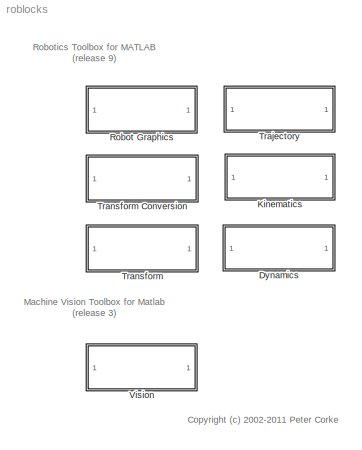
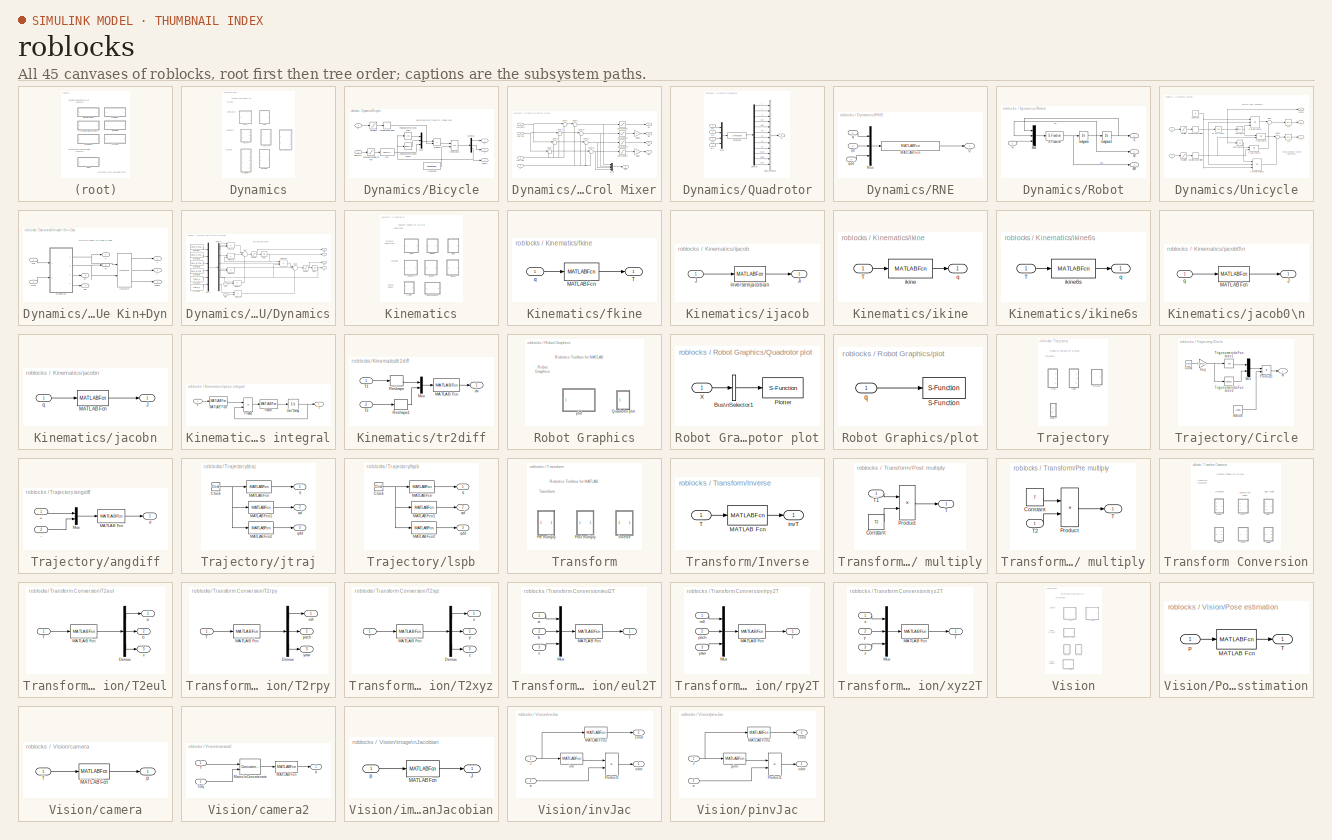
[diagram: thumbnail index - all 45 canvases of the model, root first then tree order]
MODEL roblocks
KIND library
BLOCK [SubSystem] Dynamics
  FunctionWithSeparateData = off
  MaskHideContents = off
  MinAlgLoopOccurrences = off
  Opaque = off
  Ports = []
  PropExecContextOutsideSubsystem = off
  RTWSystemCode = Auto
  RequestExecContextInheritance = off
  SID = 5
BLOCK [SubSystem] Dynamics/Bicycle
  FunctionWithSeparateData = off
  MaskHideContents = off
  MinAlgLoopOccurrences = off
  Opaque = off
  Ports = [2, 3]
  PropExecContextOutsideSubsystem = off
  RTWSystemCode = Auto
  RequestExecContextInheritance = off
  SID = 51
BLOCK [Constant] Dynamics/Bicycle/Constant
  SID = 51:222
  Value = handbrake
BLOCK [Demux] Dynamics/Bicycle/Demux
  DisplayOption = bar
  Outputs = 3
  Ports = [1, 3]
  SID = 51:4
BLOCK [Fcn] Dynamics/Bicycle/Fcn
  Expr = tan(u)/L
  SID = 51:226
BLOCK [Integrator] Dynamics/Bicycle/Integrator
  ExternalReset = level
  InitialCondition = x0
  Ports = [2, 1]
  SID = 51:227
BLOCK [Mux] Dynamics/Bicycle/Mux
  DisplayOption = bar
  Inputs = 3
  Ports = [3, 1]
  SID = 51:6
BLOCK [Product] Dynamics/Bicycle/Product
  InputSameDT = off
  OutDataTypeStr = Inherit: Inherit via internal rule
  Ports = [2, 1]
  SID = 51:7
  SaturateOnIntegerOverflow = off
BLOCK [Trigonometry] Dynamics/Bicycle/Trigonometric\nFunction
  Operator = cos
  Ports = [1, 1]
  SID = 51:8
BLOCK [Trigonometry] Dynamics/Bicycle/Trigonometric\nFunction2
  Ports = [1, 1]
  SID = 51:9
BLOCK [RateLimiter] Dynamics/Bicycle/acceleration\nlimit
  FallingSlewLimit = -accel
  RisingSlewLimit = accel
  SID = 51:10
  SampleTimeMode = inherited
BLOCK [Inport] Dynamics/Bicycle/gamma
  IconDisplay = Port number
  Port = 2
  SID = 51:3
BLOCK [Saturate] Dynamics/Bicycle/steering\nangle\nlimit
  InputPortMap = u0
  LowerLimit = -alim
  Ports = [1, 1]
  SID = 51:11
  UpperLimit = alim
BLOCK [Outport] Dynamics/Bicycle/theta
  IconDisplay = Port number
  Port = 3
  SID = 51:15
BLOCK [Inport] Dynamics/Bicycle/v
  IconDisplay = Port number
  SID = 51:2
BLOCK [Saturate] Dynamics/Bicycle/vel\nlimit
  InputPortMap = u0
  LowerLimit = -vlim
  Ports = [1, 1]
  SID = 51:12
  UpperLimit = vlim
BLOCK [Outport] Dynamics/Bicycle/x
  IconDisplay = Port number
  SID = 51:13
BLOCK [Outport] Dynamics/Bicycle/y
  IconDisplay = Port number
  Port = 2
  SID = 51:14
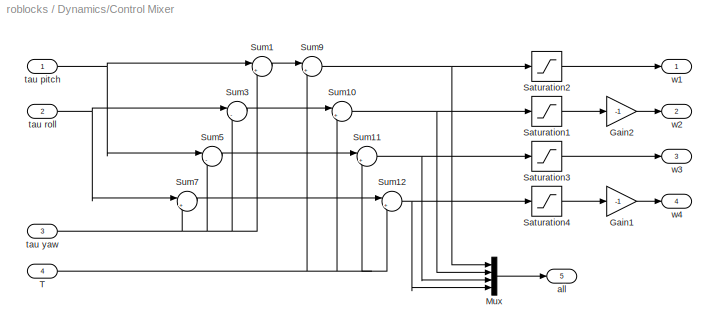
BLOCK [SubSystem] Dynamics/Control Mixer
  FunctionWithSeparateData = off
  MaskHideContents = off
  MinAlgLoopOccurrences = off
  Opaque = off
  Ports = [4, 5]
  PropExecContextOutsideSubsystem = off
  RTWSystemCode = Auto
  RequestExecContextInheritance = off
  SID = 52
BLOCK [Gain] Dynamics/Control Mixer/Gain1
  Gain = -1
  OutDataTypeStr = Inherit: Inherit via internal rule
  ParamDataTypeStr = Inherit: Inherit via internal rule
  SID = 52:160
  SaturateOnIntegerOverflow = off
BLOCK [Gain] Dynamics/Control Mixer/Gain2
  Gain = -1
  OutDataTypeStr = Inherit: Inherit via internal rule
  ParamDataTypeStr = Inherit: Inherit via internal rule
  SID = 52:161
  SaturateOnIntegerOverflow = off
BLOCK [Mux] Dynamics/Control Mixer/Mux
  DisplayOption = bar
  Ports = [4, 1]
  SID = 52:162
BLOCK [Saturate] Dynamics/Control Mixer/Saturation1
  InputPortMap = u0
  LowerLimit = 700
  Ports = [1, 1]
  SID = 52:163
  UpperLimit = 1000
BLOCK [Saturate] Dynamics/Control Mixer/Saturation2
  InputPortMap = u0
  LowerLimit = 700
  Ports = [1, 1]
  SID = 52:164
  UpperLimit = 1000
BLOCK [Saturate] Dynamics/Control Mixer/Saturation3
  InputPortMap = u0
  LowerLimit = 700
  Ports = [1, 1]
  SID = 52:165
  UpperLimit = 1000
BLOCK [Saturate] Dynamics/Control Mixer/Saturation4
  InputPortMap = u0
  LowerLimit = 700
  Ports = [1, 1]
  SID = 52:166
  UpperLimit = 1000
BLOCK [Sum] Dynamics/Control Mixer/Sum1
  IconShape = round
  Inputs = |++
  Ports = [2, 1]
  SID = 52:167
BLOCK [Sum] Dynamics/Control Mixer/Sum10
  IconShape = round
  Inputs = |++
  Ports = [2, 1]
  SID = 52:168
BLOCK [Sum] Dynamics/Control Mixer/Sum11
  IconShape = round
  Inputs = |++
  Ports = [2, 1]
  SID = 52:169
BLOCK [Sum] Dynamics/Control Mixer/Sum12
  IconShape = round
  Inputs = |++
  Ports = [2, 1]
  SID = 52:170
BLOCK [Sum] Dynamics/Control Mixer/Sum3
  IconShape = round
  Inputs = |--
  Ports = [2, 1]
  SID = 52:171
BLOCK [Sum] Dynamics/Control Mixer/Sum5
  IconShape = round
  Inputs = |-+
  Ports = [2, 1]
  SID = 52:172
BLOCK [Sum] Dynamics/Control Mixer/Sum7
  IconShape = round
  Inputs = |+-
  Ports = [2, 1]
  SID = 52:173
BLOCK [Sum] Dynamics/Control Mixer/Sum9
  IconShape = round
  Inputs = |++
  Ports = [2, 1]
  SID = 52:174
BLOCK [Inport] Dynamics/Control Mixer/T
  IconDisplay = Port number
  Port = 4
  SID = 52:159
BLOCK [Outport] Dynamics/Control Mixer/all
  IconDisplay = Port number
  Port = 5
  SID = 52:179
BLOCK [Inport] Dynamics/Control Mixer/tau pitch
  IconDisplay = Port number
  SID = 52:156
BLOCK [Inport] Dynamics/Control Mixer/tau roll
  IconDisplay = Port number
  Port = 2
  SID = 52:157
BLOCK [Inport] Dynamics/Control Mixer/tau yaw
  IconDisplay = Port number
  Port = 3
  SID = 52:158
BLOCK [Outport] Dynamics/Control Mixer/w1
  IconDisplay = Port number
  SID = 52:175
BLOCK [Outport] Dynamics/Control Mixer/w2
  IconDisplay = Port number
  Port = 2
  SID = 52:176
BLOCK [Outport] Dynamics/Control Mixer/w3
  IconDisplay = Port number
  Port = 3
  SID = 52:177
BLOCK [Outport] Dynamics/Control Mixer/w4
  IconDisplay = Port number
  Port = 4
  SID = 52:178
BLOCK [SubSystem] Dynamics/Quadrotor
  FunctionWithSeparateData = off
  MaskHideContents = off
  MinAlgLoopOccurrences = off
  Opaque = off
  Ports = [4, 1]
  PropExecContextOutsideSubsystem = off
  RTWSystemCode = Auto
  RequestExecContextInheritance = off
  SID = 53
BLOCK [BusCreator] Dynamics/Quadrotor/Bus\nCreator
  DisplayOption = bar
  Inputs = 'X','Y','Z','yaw','pitch','roll','dx','dy','dz','dyaw','dpitch','droll'
  Ports = [12, 1]
  SID = 53:185
BLOCK [Demux] Dynamics/Quadrotor/Demux
  Outputs = 12
  Ports = [1, 12]
  SID = 53:186
BLOCK [S-Function] Dynamics/Quadrotor/Dynamics
  EnableBusSupport = off
  FunctionName = quadrotor_dynamics
  Parameters = quad
  Ports = [1, 1]
  SID = 53:187
BLOCK [Mux] Dynamics/Quadrotor/Mux
  DisplayOption = bar
  Ports = [4, 1]
  SID = 53:188
BLOCK [Outport] Dynamics/Quadrotor/X
  IconDisplay = Port number
  SID = 53:189
BLOCK [Inport] Dynamics/Quadrotor/w 1
  IconDisplay = Port number
  SID = 53:181
BLOCK [Inport] Dynamics/Quadrotor/w 2
  IconDisplay = Port number
  Port = 2
  SID = 53:182
BLOCK [Inport] Dynamics/Quadrotor/w 3
  IconDisplay = Port number
  Port = 3
  SID = 53:183
BLOCK [Inport] Dynamics/Quadrotor/w 4
  IconDisplay = Port number
  Port = 4
  SID = 53:184
BLOCK [SubSystem] Dynamics/RNE
  FunctionWithSeparateData = off
  MaskHideContents = off
  MinAlgLoopOccurrences = off
  Opaque = off
  Ports = [3, 1]
  PropExecContextOutsideSubsystem = off
  RTWSystemCode = Auto
  RequestExecContextInheritance = off
  SID = 54
BLOCK [MATLABFcn] Dynamics/RNE/MATLAB Fcn
  MATLABFcn = rne(robot, u(1:n)', u(n+1:2*n)', u(2*n+1:3*n)')
  OutputDimensions = robot.n
  Ports = [1, 1]
  SID = 54:243
BLOCK [Mux] Dynamics/RNE/Mux
  DisplayOption = bar
  Inputs = 3
  Ports = [3, 1]
  SID = 54:244
BLOCK [Outport] Dynamics/RNE/Q
  IconDisplay = Port number
  SID = 54:245
BLOCK [Inport] Dynamics/RNE/q
  IconDisplay = Port number
  SID = 54:240
BLOCK [Inport] Dynamics/RNE/qd
  IconDisplay = Port number
  Port = 2
  SID = 54:241
BLOCK [Inport] Dynamics/RNE/qdd
  IconDisplay = Port number
  Port = 3
  SID = 54:242
BLOCK [SubSystem] Dynamics/Robot
  FunctionWithSeparateData = off
  MaskHideContents = off
  MinAlgLoopOccurrences = off
  Opaque = off
  Ports = [1, 3]
  PropExecContextOutsideSubsystem = off
  RTWSystemCode = Auto
  RequestExecContextInheritance = off
  SID = 55
BLOCK [Integrator] Dynamics/Robot/Integrator
  Ports = [1, 1]
  SID = 55:246
BLOCK [Integrator] Dynamics/Robot/Integrator1
  InitialCondition = q0
  Ports = [1, 1]
  SID = 55:247
BLOCK [Mux] Dynamics/Robot/Mux
  DisplayOption = bar
  Inputs = 3
  Ports = [3, 1]
  SID = 55:248
BLOCK [Inport] Dynamics/Robot/Q
  IconDisplay = Port number
  SID = 55:225
BLOCK [S-Function] Dynamics/Robot/S-Function
  EnableBusSupport = off
  FunctionName = slaccel
  Parameters = robot
  Ports = [1, 1]
  SID = 55:229
BLOCK [Outport] Dynamics/Robot/q
  IconDisplay = Port number
  SID = 55:230
BLOCK [Outport] Dynamics/Robot/qd
  IconDisplay = Port number
  Port = 2
  SID = 55:231
BLOCK [Outport] Dynamics/Robot/qdd
  IconDisplay = Port number
  Port = 3
  SID = 55:232
BLOCK [SubSystem] Dynamics/Unicycle
  FunctionWithSeparateData = off
  MaskHideContents = off
  MinAlgLoopOccurrences = off
  Opaque = off
  Ports = [2, 3]
  PropExecContextOutsideSubsystem = off
  RTWSystemCode = Auto
  RequestExecContextInheritance = off
  SID = 651
BLOCK [SubSystem] Dynamics/Unicycle Kin+Dyn
  FunctionWithSeparateData = off
  MaskHideContents = off
  MinAlgLoopOccurrences = off
  Opaque = off
  Ports = [2, 7]
  PropExecContextOutsideSubsystem = off
  RTWSystemCode = Auto
  RequestExecContextInheritance = off
  SID = 652
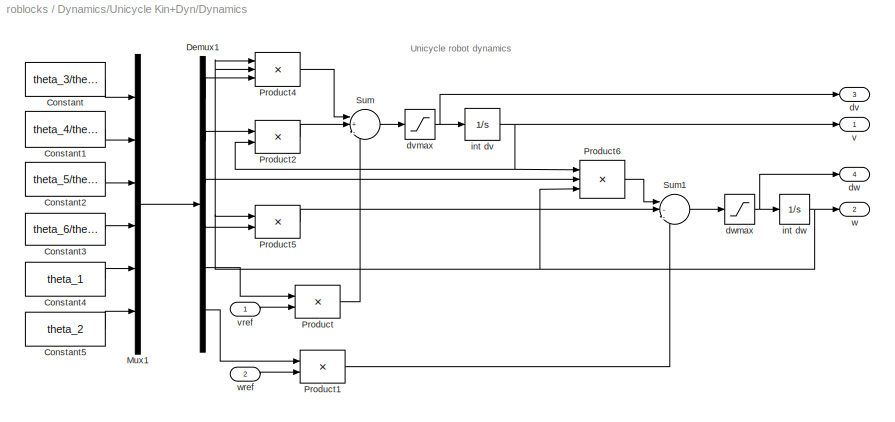
BLOCK [SubSystem] Dynamics/Unicycle Kin+Dyn/Dynamics
  FunctionWithSeparateData = off
  MaskHideContents = off
  MinAlgLoopOccurrences = off
  Opaque = off
  Ports = [2, 4]
  PropExecContextOutsideSubsystem = off
  RTWSystemCode = Auto
  RequestExecContextInheritance = off
  SID = 678
BLOCK [Constant] Dynamics/Unicycle Kin+Dyn/Dynamics/Constant
  SID = 681
  Value = theta_3/theta_1
BLOCK [Constant] Dynamics/Unicycle Kin+Dyn/Dynamics/Constant1
  SID = 682
  Value = theta_4/theta_1
BLOCK [Constant] Dynamics/Unicycle Kin+Dyn/Dynamics/Constant2
  SID = 683
  Value = theta_5/theta_2
BLOCK [Constant] Dynamics/Unicycle Kin+Dyn/Dynamics/Constant3
  SID = 684
  Value = theta_6/theta_2
BLOCK [Constant] Dynamics/Unicycle Kin+Dyn/Dynamics/Constant4
  SID = 685
  Value = theta_1
BLOCK [Constant] Dynamics/Unicycle Kin+Dyn/Dynamics/Constant5
  SID = 686
  Value = theta_2
BLOCK [Demux] Dynamics/Unicycle Kin+Dyn/Dynamics/Demux1
  Outputs = 6
  Ports = [1, 6]
  SID = 687
BLOCK [Mux] Dynamics/Unicycle Kin+Dyn/Dynamics/Mux1
  DisplayOption = bar
  Inputs = 6
  Ports = [6, 1]
  SID = 688
BLOCK [Product] Dynamics/Unicycle Kin+Dyn/Dynamics/Product
  InputSameDT = off
  Ports = [2, 1]
  RndMeth = Floor
  SID = 689
BLOCK [Product] Dynamics/Unicycle Kin+Dyn/Dynamics/Product1
  InputSameDT = off
  Ports = [2, 1]
  RndMeth = Floor
  SID = 690
BLOCK [Product] Dynamics/Unicycle Kin+Dyn/Dynamics/Product2
  InputSameDT = off
  Ports = [2, 1]
  RndMeth = Floor
  SID = 691
BLOCK [Product] Dynamics/Unicycle Kin+Dyn/Dynamics/Product4
  InputSameDT = off
  Inputs = 3
  Ports = [3, 1]
  RndMeth = Floor
  SID = 692
BLOCK [Product] Dynamics/Unicycle Kin+Dyn/Dynamics/Product5
  InputSameDT = off
  Ports = [2, 1]
  RndMeth = Floor
  SID = 693
BLOCK [Product] Dynamics/Unicycle Kin+Dyn/Dynamics/Product6
  InputSameDT = off
  Inputs = 3
  Ports = [3, 1]
  RndMeth = Floor
  SID = 694
BLOCK [Sum] Dynamics/Unicycle Kin+Dyn/Dynamics/Sum
  IconShape = round
  InputSameDT = off
  Inputs = |+-+
  OutDataTypeStr = Inherit: Inherit via internal rule
  Ports = [3, 1]
  SID = 695
BLOCK [Sum] Dynamics/Unicycle Kin+Dyn/Dynamics/Sum1
  IconShape = round
  InputSameDT = off
  Inputs = |--+
  OutDataTypeStr = Inherit: Inherit via internal rule
  Ports = [3, 1]
  SID = 696
BLOCK [Outport] Dynamics/Unicycle Kin+Dyn/Dynamics/dv
  IconDisplay = Port number
  Port = 3
  SID = 703
BLOCK [Saturate] Dynamics/Unicycle Kin+Dyn/Dynamics/dvmax
  InputPortMap = u0
  LowerLimit = -dvmax
  Ports = [1, 1]
  SID = 697
  UpperLimit = dvmax
  ZeroCross = off
BLOCK [Outport] Dynamics/Unicycle Kin+Dyn/Dynamics/dw
  IconDisplay = Port number
  Port = 4
  SID = 704
BLOCK [Saturate] Dynamics/Unicycle Kin+Dyn/Dynamics/dwmax
  InputPortMap = u0
  LowerLimit = -dwmax
  Ports = [1, 1]
  SID = 698
  UpperLimit = dwmax
  ZeroCross = off
BLOCK [Integrator] Dynamics/Unicycle Kin+Dyn/Dynamics/int dv
  LimitOutput = on
  LowerSaturationLimit = -vmax
  Ports = [1, 1]
  SID = 699
  UpperSaturationLimit = vmax
BLOCK [Integrator] Dynamics/Unicycle Kin+Dyn/Dynamics/int dw
  LimitOutput = on
  LowerSaturationLimit = -wmax
  Ports = [1, 1]
  SID = 700
  UpperSaturationLimit = wmax
BLOCK [Outport] Dynamics/Unicycle Kin+Dyn/Dynamics/v
  IconDisplay = Port number
  SID = 701
BLOCK [Inport] Dynamics/Unicycle Kin+Dyn/Dynamics/vref
  IconDisplay = Port number
  SID = 679
BLOCK [Outport] Dynamics/Unicycle Kin+Dyn/Dynamics/w
  IconDisplay = Port number
  Port = 2
  SID = 702
BLOCK [Inport] Dynamics/Unicycle Kin+Dyn/Dynamics/wref
  IconDisplay = Port number
  Port = 2
  SID = 680
BLOCK [Reference] Dynamics/Unicycle Kin+Dyn/Unicycle  REF=roblocks/Dynamics/Unicycle  (lib defined in mdl_2a292b13c81b, mdl_69400f8cfe22, +12 more)
  Ports = [2, 3]
  SID = 706
  SourceBlock = roblocks/Dynamics/Unicycle
  a = 0.2
  dvmax = 0.3
  dwmax = 1.745
  vmax = 0.75
  wmax = 1.745
  x0 = [0, 0, 0]
BLOCK [Outport] Dynamics/Unicycle Kin+Dyn/dv
  IconDisplay = Port number
  Port = 6
  SID = 712
BLOCK [Outport] Dynamics/Unicycle Kin+Dyn/dw
  IconDisplay = Port number
  Port = 7
  SID = 713
BLOCK [Outport] Dynamics/Unicycle Kin+Dyn/theta
  IconDisplay = Port number
  Port = 3
  SID = 709
BLOCK [Outport] Dynamics/Unicycle Kin+Dyn/v
  IconDisplay = Port number
  Port = 4
  SID = 710
BLOCK [Inport] Dynamics/Unicycle Kin+Dyn/vref
  IconDisplay = Port number
  SID = 676
BLOCK [Outport] Dynamics/Unicycle Kin+Dyn/w
  IconDisplay = Port number
  Port = 5
  SID = 711
BLOCK [Inport] Dynamics/Unicycle Kin+Dyn/wref
  IconDisplay = Port number
  Port = 2
  SID = 677
BLOCK [Outport] Dynamics/Unicycle Kin+Dyn/x
  IconDisplay = Port number
  SID = 707
BLOCK [Outport] Dynamics/Unicycle Kin+Dyn/y
  IconDisplay = Port number
  Port = 2
  SID = 708
BLOCK [Constant] Dynamics/Unicycle/Constant
  SID = 655
  Value = a
BLOCK [Sum] Dynamics/Unicycle/Sum
  IconShape = round
  InputSameDT = off
  Inputs = |-+
  OutDataTypeStr = Inherit: Inherit via internal rule
  Ports = [2, 1]
  SID = 656
BLOCK [Sum] Dynamics/Unicycle/Sum1
  IconShape = round
  InputSameDT = off
  Inputs = |++
  OutDataTypeStr = Inherit: Inherit via internal rule
  Ports = [2, 1]
  SID = 657
BLOCK [Product] Dynamics/Unicycle/a w cos(theta)
  InputSameDT = off
  Inputs = 3
  Ports = [3, 1]
  RndMeth = Floor
  SID = 658
BLOCK [Product] Dynamics/Unicycle/a w sin(theta)
  InputSameDT = off
  Inputs = 3
  Ports = [3, 1]
  RndMeth = Floor
  SID = 659
BLOCK [RateLimiter] Dynamics/Unicycle/acceleration\nlimit
  FallingSlewLimit = -dvmax
  RisingSlewLimit = dvmax
  SID = 660
  SampleTimeMode = inherited
BLOCK [RateLimiter] Dynamics/Unicycle/acceleration\nlimit1
  FallingSlewLimit = -dwmax
  RisingSlewLimit = dwmax
  SID = 661
  SampleTimeMode = inherited
BLOCK [Trigonometry] Dynamics/Unicycle/cos(theta)
  Operator = cos
  Ports = [1, 1]
  SID = 662
BLOCK [Integrator] Dynamics/Unicycle/int w = theta
  InitialCondition = x0(3)
  Ports = [1, 1]
  SID = 663
BLOCK [Trigonometry] Dynamics/Unicycle/sin(theta)
  Ports = [1, 1]
  SID = 664
BLOCK [Outport] Dynamics/Unicycle/theta
  IconDisplay = Port number
  Port = 3
  SID = 673
BLOCK [Inport] Dynamics/Unicycle/v
  IconDisplay = Port number
  SID = 653
BLOCK [Product] Dynamics/Unicycle/v cos(theta)
  InputSameDT = off
  Ports = [2, 1]
  RndMeth = Floor
  SID = 665
BLOCK [Product] Dynamics/Unicycle/v sin(theta)
  InputSameDT = off
  Ports = [2, 1]
  RndMeth = Floor
  SID = 666
BLOCK [Saturate] Dynamics/Unicycle/vel\nlimit
  InputPortMap = u0
  LowerLimit = -vmax
  Ports = [1, 1]
  SID = 667
  UpperLimit = vmax
BLOCK [Inport] Dynamics/Unicycle/w
  IconDisplay = Port number
  Port = 2
  SID = 654
BLOCK [Saturate] Dynamics/Unicycle/w\nlimit
  InputPortMap = u0
  LowerLimit = -wmax
  Ports = [1, 1]
  SID = 668
  UpperLimit = wmax
BLOCK [Outport] Dynamics/Unicycle/x
  IconDisplay = Port number
  SID = 671
BLOCK [Integrator] Dynamics/Unicycle/x_0
  InitialCondition = x0(1)
  Ports = [1, 1]
  SID = 669
BLOCK [Outport] Dynamics/Unicycle/y
  IconDisplay = Port number
  Port = 2
  SID = 672
BLOCK [Integrator] Dynamics/Unicycle/y_0
  InitialCondition = x0(2)
  Ports = [1, 1]
  SID = 670
BLOCK [SubSystem] Kinematics
  FunctionWithSeparateData = off
  MaskHideContents = off
  MinAlgLoopOccurrences = off
  Opaque = off
  Ports = []
  PropExecContextOutsideSubsystem = off
  RTWSystemCode = Auto
  RequestExecContextInheritance = off
  SID = 249
BLOCK [SubSystem] Kinematics/fkine
  FunctionWithSeparateData = off
  MaskHideContents = off
  MinAlgLoopOccurrences = off
  Opaque = off
  Ports = [1, 1]
  PropExecContextOutsideSubsystem = off
  RTWSystemCode = Auto
  RequestExecContextInheritance = off
  SID = 249:22
BLOCK [MATLABFcn] Kinematics/fkine/MATLAB Fcn
  MATLABFcn = fkine(robot,u)
  Output1D = off
  OutputDimensions = [4 4]
  Ports = [1, 1]
  SID = 249:22:70
BLOCK [Outport] Kinematics/fkine/T
  IconDisplay = Port number
  SID = 249:22:71
BLOCK [Inport] Kinematics/fkine/q
  IconDisplay = Port number
  SID = 249:22:69
BLOCK [SubSystem] Kinematics/ijacob
  FunctionWithSeparateData = off
  MaskHideContents = off
  MinAlgLoopOccurrences = off
  Opaque = off
  Ports = [1, 1]
  PropExecContextOutsideSubsystem = off
  RTWSystemCode = Auto
  RequestExecContextInheritance = off
  SID = 249:23
BLOCK [Inport] Kinematics/ijacob/J
  IconDisplay = Port number
  SID = 249:23:73
BLOCK [Outport] Kinematics/ijacob/Ji
  IconDisplay = Port number
  SID = 249:23:75
BLOCK [MATLABFcn] Kinematics/ijacob/inverse\njacobian
  MATLABFcn = inv(u)
  Output1D = off
  Ports = [1, 1]
  SID = 249:23:74
BLOCK [SubSystem] Kinematics/ikine
  FunctionWithSeparateData = off
  MaskHideContents = off
  MinAlgLoopOccurrences = off
  Opaque = off
  Ports = [1, 1]
  PropExecContextOutsideSubsystem = off
  RTWSystemCode = Auto
  RequestExecContextInheritance = off
  SID = 249:250
BLOCK [Inport] Kinematics/ikine/T
  IconDisplay = Port number
  SID = 249:72
BLOCK [MATLABFcn] Kinematics/ikine/ikine
  MATLABFcn = robot.ikine(u, q0, M, opt{:})
  Ports = [1, 1]
  SID = 249:251
BLOCK [Outport] Kinematics/ikine/q
  IconDisplay = Port number
  SID = 249:252
BLOCK [SubSystem] Kinematics/ikine6s
  FunctionWithSeparateData = off
  MaskHideContents = off
  MinAlgLoopOccurrences = off
  Opaque = off
  Ports = [1, 1]
  PropExecContextOutsideSubsystem = off
  RTWSystemCode = Auto
  RequestExecContextInheritance = off
  SID = 249:66
BLOCK [Inport] Kinematics/ikine6s/T
  IconDisplay = Port number
  SID = 249:67
BLOCK [MATLABFcn] Kinematics/ikine6s/ikine6s
  MATLABFcn = robot.ikine6s(u,conf)
  Ports = [1, 1]
  SID = 249:65
BLOCK [Outport] Kinematics/ikine6s/q
  IconDisplay = Port number
  SID = 249:68
BLOCK [SubSystem] Kinematics/jacob0\n
  FunctionWithSeparateData = off
  MaskHideContents = off
  MinAlgLoopOccurrences = off
  Opaque = off
  Ports = [1, 1]
  PropExecContextOutsideSubsystem = off
  RTWSystemCode = Auto
  RequestExecContextInheritance = off
  SID = 249:24
BLOCK [Outport] Kinematics/jacob0\n/J
  IconDisplay = Port number
  SID = 249:24:79
BLOCK [MATLABFcn] Kinematics/jacob0\n/MATLAB Fcn
  MATLABFcn = jacob0(robot,u)
  Output1D = off
  OutputDimensions = [6 n]
  Ports = [1, 1]
  SID = 249:24:78
BLOCK [Inport] Kinematics/jacob0\n/q
  IconDisplay = Port number
  SID = 249:24:77
BLOCK [SubSystem] Kinematics/jacobn
  FunctionWithSeparateData = off
  MaskHideContents = off
  MinAlgLoopOccurrences = off
  Opaque = off
  Ports = [1, 1]
  PropExecContextOutsideSubsystem = off
  RTWSystemCode = Auto
  RequestExecContextInheritance = off
  SID = 249:25
BLOCK [Outport] Kinematics/jacobn/J
  IconDisplay = Port number
  SID = 249:25:83
BLOCK [MATLABFcn] Kinematics/jacobn/MATLAB Fcn
  MATLABFcn = jacobn(robot,u)
  Output1D = off
  OutputDimensions = [6 n]
  Ports = [1, 1]
  SID = 249:25:82
BLOCK [Inport] Kinematics/jacobn/q
  IconDisplay = Port number
  SID = 249:25:81
BLOCK [SubSystem] Kinematics/pose integral
  FunctionWithSeparateData = off
  MaskHideContents = off
  MinAlgLoopOccurrences = off
  Opaque = off
  Ports = [1, 1]
  PropExecContextOutsideSubsystem = off
  RTWSystemCode = Auto
  RequestExecContextInheritance = off
  SID = 249:58
BLOCK [MATLABFcn] Kinematics/pose integral/MATLAB Fcn3
  MATLABFcn = delta2tr(u*dt)
  Output1D = off
  Ports = [1, 1]
  SID = 249:60
BLOCK [Product] Kinematics/pose integral/Product
  InputSameDT = off
  Multiplication = Matrix(*)
  OutDataTypeStr = Inherit: Inherit via internal rule
  Ports = [2, 1]
  SID = 249:61
  SaturateOnIntegerOverflow = off
BLOCK [Outport] Kinematics/pose integral/T
  IconDisplay = Port number
  SID = 249:64
BLOCK [UnitDelay] Kinematics/pose integral/Unit Delay
  InitialCondition = T0
  SID = 249:62
  SampleTime = dt
BLOCK [MATLABFcn] Kinematics/pose integral/trnorm
  MATLABFcn = trnorm(u)
  Output1D = off
  Ports = [1, 1]
  SID = 249:63
BLOCK [Inport] Kinematics/pose integral/v
  IconDisplay = Port number
  SID = 249:59
BLOCK [SubSystem] Kinematics/tr2diff
  FunctionWithSeparateData = off
  MaskHideContents = off
  MinAlgLoopOccurrences = off
  Opaque = off
  Ports = [2, 1]
  PropExecContextOutsideSubsystem = off
  RTWSystemCode = Auto
  RequestExecContextInheritance = off
  SID = 249:26
BLOCK [MATLABFcn] Kinematics/tr2diff/MATLAB Fcn
  MATLABFcn = tr2delta(reshape(u(1:16),4,4), reshape(u(17:32),4,4))
  OutputDimensions = 6
  Ports = [1, 1]
  SID = 249:26:113
BLOCK [Mux] Kinematics/tr2diff/Mux
  DisplayOption = bar
  Inputs = 2
  Ports = [2, 1]
  SID = 249:26:114
BLOCK [Reshape] Kinematics/tr2diff/Reshape
  Ports = [1, 1]
  SID = 249:26:115
BLOCK [Reshape] Kinematics/tr2diff/Reshape1
  Ports = [1, 1]
  SID = 249:26:116
BLOCK [Inport] Kinematics/tr2diff/T1
  IconDisplay = Port number
  SID = 249:26:111
BLOCK [Inport] Kinematics/tr2diff/T2
  IconDisplay = Port number
  Port = 2
  SID = 249:26:112
BLOCK [Outport] Kinematics/tr2diff/dx
  IconDisplay = Port number
  SID = 249:26:117
BLOCK [SubSystem] Robot Graphics
  FunctionWithSeparateData = off
  MaskHideContents = off
  MinAlgLoopOccurrences = off
  Opaque = off
  Ports = []
  PropExecContextOutsideSubsystem = off
  RTWSystemCode = Auto
  RequestExecContextInheritance = off
  SID = 16
BLOCK [SubSystem] Robot Graphics/Quadrotor plot
  FunctionWithSeparateData = off
  MaskHideContents = off
  MinAlgLoopOccurrences = off
  Opaque = off
  Ports = [1]
  PropExecContextOutsideSubsystem = off
  RTWSystemCode = Auto
  RequestExecContextInheritance = off
  SID = 16:18
BLOCK [BusSelector] Robot Graphics/Quadrotor plot/Bus\nSelector1
  OutputAsBus = on
  OutputSignals = X,Y,Z,yaw,pitch,roll
  Ports = [1, 1]
  SID = 16:18:192
BLOCK [S-Function] Robot Graphics/Quadrotor plot/Plotter
  EnableBusSupport = off
  FunctionName = quadrotor_plot
  Parameters = [2,10], 1, 1
  Ports = [1]
  SID = 16:18:193
BLOCK [Inport] Robot Graphics/Quadrotor plot/X
  IconDisplay = Port number
  SID = 16:18:191
BLOCK [SubSystem] Robot Graphics/plot
  FunctionWithSeparateData = off
  MaskHideContents = off
  MinAlgLoopOccurrences = off
  Opaque = off
  Ports = [1]
  PropExecContextOutsideSubsystem = off
  RTWSystemCode = Auto
  RequestExecContextInheritance = off
  SID = 16:17
BLOCK [S-Function] Robot Graphics/plot/S-Function
  EnableBusSupport = off
  FunctionName = slplotbot
  Parameters = robot,fps,holdplot
  Ports = [1]
  SID = 16:17:95
BLOCK [Inport] Robot Graphics/plot/q
  IconDisplay = Port number
  SID = 16:17:94
BLOCK [SubSystem] Trajectory
  FunctionWithSeparateData = off
  MaskHideContents = off
  MinAlgLoopOccurrences = off
  Opaque = off
  Ports = []
  PropExecContextOutsideSubsystem = off
  RTWSystemCode = Auto
  RequestExecContextInheritance = off
  SID = 257
BLOCK [SubSystem] Trajectory/Circle
  FunctionWithSeparateData = off
  MaskHideContents = off
  MinAlgLoopOccurrences = off
  Opaque = off
  Ports = [0, 1]
  PropExecContextOutsideSubsystem = off
  RTWSystemCode = Auto
  RequestExecContextInheritance = off
  SID = 56
BLOCK [Clock] Trajectory/Circle/Clock
  SID = 56:258
BLOCK [Mux] Trajectory/Circle/Mux
  DisplayOption = bar
  Inputs = 2
  Ports = [2, 1]
  SID = 56:259
BLOCK [Product] Trajectory/Circle/Product1
  InputSameDT = off
  OutDataTypeStr = Inherit: Inherit via internal rule
  Ports = [2, 1]
  SID = 56:260
  SaturateOnIntegerOverflow = off
BLOCK [Trigonometry] Trajectory/Circle/Trigonometric\nFunction1
  Operator = cos
  Ports = [1, 1]
  SID = 56:261
BLOCK [Trigonometry] Trajectory/Circle/Trigonometric\nFunction3
  Ports = [1, 1]
  SID = 56:21
BLOCK [Gain] Trajectory/Circle/freq
  Gain = freq*2*pi
  OutDataTypeStr = Inherit: Inherit via internal rule
  ParamDataTypeStr = Inherit: Inherit via internal rule
  SID = 56:262
  SaturateOnIntegerOverflow = off
BLOCK [Constant] Trajectory/Circle/radius
  SID = 56:263
  Value = radius
BLOCK [Outport] Trajectory/Circle/xy
  IconDisplay = Port number
  SID = 56:264
BLOCK [SubSystem] Trajectory/angdiff
  FunctionWithSeparateData = off
  MaskHideContents = off
  MinAlgLoopOccurrences = off
  Opaque = off
  Ports = [2, 1]
  PropExecContextOutsideSubsystem = off
  RTWSystemCode = Auto
  RequestExecContextInheritance = off
  SID = 57
BLOCK [Inport] Trajectory/angdiff/+
  IconDisplay = Port number
  SID = 57:265
BLOCK [Inport] Trajectory/angdiff/-
  IconDisplay = Port number
  Port = 2
  SID = 57:266
BLOCK [MATLABFcn] Trajectory/angdiff/MATLAB Fcn
  MATLABFcn = angdiff(u(1), u(2))
  Ports = [1, 1]
  SID = 57:267
BLOCK [Mux] Trajectory/angdiff/Mux
  DisplayOption = bar
  Inputs = 2
  Ports = [2, 1]
  SID = 57:268
BLOCK [Outport] Trajectory/angdiff/d
  IconDisplay = Port number
  SID = 57:269
BLOCK [SubSystem] Trajectory/jtraj
  FunctionWithSeparateData = off
  MaskHideContents = off
  MinAlgLoopOccurrences = off
  Opaque = off
  Ports = [0, 3]
  PropExecContextOutsideSubsystem = off
  RTWSystemCode = Auto
  RequestExecContextInheritance = off
  SID = 270
BLOCK [Clock] Trajectory/jtraj/Clock
  SID = 270:85
BLOCK [MATLABFcn] Trajectory/jtraj/MATLAB Fcn
  MATLABFcn = interp1(t,q,u)
  OutputDimensions = n
  Ports = [1, 1]
  SID = 270:86
  SampleTime = ts
BLOCK [MATLABFcn] Trajectory/jtraj/MATLAB Fcn1
  MATLABFcn = interp1(t,qd,u)
  OutputDimensions = n
  Ports = [1, 1]
  SID = 270:87
  SampleTime = ts
BLOCK [MATLABFcn] Trajectory/jtraj/MATLAB Fcn2
  MATLABFcn = interp1(t,qdd,u)
  OutputDimensions = n
  Ports = [1, 1]
  SID = 270:88
  SampleTime = ts
BLOCK [Outport] Trajectory/jtraj/q
  IconDisplay = Port number
  SID = 270:89
BLOCK [Outport] Trajectory/jtraj/qd
  IconDisplay = Port number
  Port = 2
  SID = 270:90
BLOCK [Outport] Trajectory/jtraj/qdd
  IconDisplay = Port number
  Port = 3
  SID = 270:91
BLOCK [SubSystem] Trajectory/lspb
  FunctionWithSeparateData = off
  MaskHideContents = off
  MinAlgLoopOccurrences = off
  Opaque = off
  Ports = [0, 3]
  PropExecContextOutsideSubsystem = off
  RTWSystemCode = Auto
  RequestExecContextInheritance = off
  SID = 271
BLOCK [Clock] Trajectory/lspb/Clock
  SID = 271:585
BLOCK [MATLABFcn] Trajectory/lspb/MATLAB Fcn
  MATLABFcn = interp1(t,q,u)
  OutputDimensions = n
  Ports = [1, 1]
  SID = 271:586
BLOCK [MATLABFcn] Trajectory/lspb/MATLAB Fcn1
  MATLABFcn = interp1(t,qd,u)
  OutputDimensions = n
  Ports = [1, 1]
  SID = 271:587
BLOCK [MATLABFcn] Trajectory/lspb/MATLAB Fcn2
  MATLABFcn = interp1(t,qdd,u)
  OutputDimensions = n
  Ports = [1, 1]
  SID = 271:588
BLOCK [Outport] Trajectory/lspb/q
  IconDisplay = Port number
  SID = 271:593
BLOCK [Outport] Trajectory/lspb/qd
  IconDisplay = Port number
  Port = 2
  SID = 271:594
BLOCK [Outport] Trajectory/lspb/qdd
  IconDisplay = Port number
  Port = 3
  SID = 271:595
BLOCK [SubSystem] Transform
  FunctionWithSeparateData = off
  MaskHideContents = off
  MinAlgLoopOccurrences = off
  Opaque = off
  Ports = []
  PropExecContextOutsideSubsystem = off
  RTWSystemCode = Auto
  RequestExecContextInheritance = off
  SID = 35
BLOCK [SubSystem] Transform Conversion
  FunctionWithSeparateData = off
  MaskHideContents = off
  MinAlgLoopOccurrences = off
  Opaque = off
  Ports = []
  PropExecContextOutsideSubsystem = off
  RTWSystemCode = Auto
  RequestExecContextInheritance = off
  SID = 599
BLOCK [SubSystem] Transform Conversion/T2eul
  FunctionWithSeparateData = off
  MaskHideContents = off
  MinAlgLoopOccurrences = off
  Opaque = off
  Ports = [1, 3]
  PropExecContextOutsideSubsystem = off
  RTWSystemCode = Auto
  RequestExecContextInheritance = off
  SID = 600
BLOCK [Demux] Transform Conversion/T2eul/Demux
  Outputs = 3
  Ports = [1, 3]
  SID = 600:36
BLOCK [MATLABFcn] Transform Conversion/T2eul/MATLAB Fcn
  MATLABFcn = tr2eul(u)
  OutputDimensions = 3
  Ports = [1, 1]
  SID = 600:37
BLOCK [Inport] Transform Conversion/T2eul/T
  IconDisplay = Port number
  SID = 600:601
BLOCK [Outport] Transform Conversion/T2eul/a
  IconDisplay = Port number
  SID = 600:38
BLOCK [Outport] Transform Conversion/T2eul/b
  IconDisplay = Port number
  Port = 2
  SID = 600:39
BLOCK [Outport] Transform Conversion/T2eul/c
  IconDisplay = Port number
  Port = 3
  SID = 600:40
BLOCK [SubSystem] Transform Conversion/T2rpy
  FunctionWithSeparateData = off
  MaskHideContents = off
  MinAlgLoopOccurrences = off
  Opaque = off
  Ports = [1, 3]
  PropExecContextOutsideSubsystem = off
  RTWSystemCode = Auto
  RequestExecContextInheritance = off
  SID = 602
BLOCK [Demux] Transform Conversion/T2rpy/Demux
  Outputs = 3
  Ports = [1, 3]
  SID = 602:43
BLOCK [MATLABFcn] Transform Conversion/T2rpy/MATLAB Fcn
  MATLABFcn = tr2rpy(u)
  OutputDimensions = 3
  Ports = [1, 1]
  SID = 602:44
BLOCK [Inport] Transform Conversion/T2rpy/T
  IconDisplay = Port number
  SID = 602:42
BLOCK [Outport] Transform Conversion/T2rpy/pitch
  IconDisplay = Port number
  Port = 2
  SID = 602:46
BLOCK [Outport] Transform Conversion/T2rpy/roll
  IconDisplay = Port number
  SID = 602:45
BLOCK [Outport] Transform Conversion/T2rpy/yaw
  IconDisplay = Port number
  Port = 3
  SID = 602:47
BLOCK [SubSystem] Transform Conversion/T2xyz
  FunctionWithSeparateData = off
  MaskHideContents = off
  MinAlgLoopOccurrences = off
  Opaque = off
  Ports = [1, 3]
  PropExecContextOutsideSubsystem = off
  RTWSystemCode = Auto
  RequestExecContextInheritance = off
  SID = 603
BLOCK [Demux] Transform Conversion/T2xyz/Demux
  Outputs = 3
  Ports = [1, 3]
  SID = 603:50
BLOCK [MATLABFcn] Transform Conversion/T2xyz/MATLAB Fcn
  MATLABFcn = transl(u)
  OutputDimensions = 3
  Ports = [1, 1]
  SID = 603:604
BLOCK [Inport] Transform Conversion/T2xyz/T
  IconDisplay = Port number
  SID = 603:49
BLOCK [Outport] Transform Conversion/T2xyz/x
  IconDisplay = Port number
  SID = 603:605
BLOCK [Outport] Transform Conversion/T2xyz/y
  IconDisplay = Port number
  Port = 2
  SID = 603:606
BLOCK [Outport] Transform Conversion/T2xyz/z
  IconDisplay = Port number
  Port = 3
  SID = 603:607
BLOCK [SubSystem] Transform Conversion/eul2T
  FunctionWithSeparateData = off
  MaskHideContents = off
  MinAlgLoopOccurrences = off
  Opaque = off
  Ports = [3, 1]
  PropExecContextOutsideSubsystem = off
  RTWSystemCode = Auto
  RequestExecContextInheritance = off
  SID = 608
BLOCK [MATLABFcn] Transform Conversion/eul2T/MATLAB Fcn
  MATLABFcn = eul2tr(u)
  Output1D = off
  OutputDimensions = [4 4]
  Ports = [1, 1]
  SID = 608:612
BLOCK [Mux] Transform Conversion/eul2T/Mux
  DisplayOption = bar
  Inputs = 3
  Ports = [3, 1]
  SID = 608:613
BLOCK [Outport] Transform Conversion/eul2T/T
  IconDisplay = Port number
  SID = 608:614
BLOCK [Inport] Transform Conversion/eul2T/a
  IconDisplay = Port number
  SID = 608:609
BLOCK [Inport] Transform Conversion/eul2T/b
  IconDisplay = Port number
  Port = 2
  SID = 608:610
BLOCK [Inport] Transform Conversion/eul2T/c
  IconDisplay = Port number
  Port = 3
  SID = 608:611
BLOCK [SubSystem] Transform Conversion/rpy2T
  FunctionWithSeparateData = off
  MaskHideContents = off
  MinAlgLoopOccurrences = off
  Opaque = off
  Ports = [3, 1]
  PropExecContextOutsideSubsystem = off
  RTWSystemCode = Auto
  RequestExecContextInheritance = off
  SID = 615
BLOCK [MATLABFcn] Transform Conversion/rpy2T/MATLAB Fcn
  MATLABFcn = rpy2tr(u)
  Output1D = off
  OutputDimensions = [4 4]
  Ports = [1, 1]
  SID = 615:107
BLOCK [Mux] Transform Conversion/rpy2T/Mux
  DisplayOption = bar
  Inputs = 3
  Ports = [3, 1]
  SID = 615:108
BLOCK [Outport] Transform Conversion/rpy2T/T
  IconDisplay = Port number
  SID = 615:109
BLOCK [Inport] Transform Conversion/rpy2T/pitch
  IconDisplay = Port number
  Port = 2
  SID = 615:105
BLOCK [Inport] Transform Conversion/rpy2T/roll
  IconDisplay = Port number
  SID = 615:104
BLOCK [Inport] Transform Conversion/rpy2T/yaw
  IconDisplay = Port number
  Port = 3
  SID = 615:106
BLOCK [SubSystem] Transform Conversion/xyz2T
  FunctionWithSeparateData = off
  MaskHideContents = off
  MinAlgLoopOccurrences = off
  Opaque = off
  Ports = [3, 1]
  PropExecContextOutsideSubsystem = off
  RTWSystemCode = Auto
  RequestExecContextInheritance = off
  SID = 616
BLOCK [MATLABFcn] Transform Conversion/xyz2T/MATLAB Fcn
  MATLABFcn = transl(u)
  Output1D = off
  OutputDimensions = [4 4]
  Ports = [1, 1]
  SID = 616:122
BLOCK [Mux] Transform Conversion/xyz2T/Mux
  DisplayOption = bar
  Inputs = 3
  Ports = [3, 1]
  SID = 616:123
BLOCK [Outport] Transform Conversion/xyz2T/T
  IconDisplay = Port number
  SID = 616:124
BLOCK [Inport] Transform Conversion/xyz2T/x
  IconDisplay = Port number
  SID = 616:119
BLOCK [Inport] Transform Conversion/xyz2T/y
  IconDisplay = Port number
  Port = 2
  SID = 616:120
BLOCK [Inport] Transform Conversion/xyz2T/z
  IconDisplay = Port number
  Port = 3
  SID = 616:121
BLOCK [SubSystem] Transform/Inverse
  FunctionWithSeparateData = off
  MaskHideContents = off
  MinAlgLoopOccurrences = off
  Opaque = off
  Ports = [1, 1]
  PropExecContextOutsideSubsystem = off
  RTWSystemCode = Auto
  RequestExecContextInheritance = off
  SID = 596
BLOCK [MATLABFcn] Transform/Inverse/MATLAB Fcn
  MATLABFcn = inv(u)
  Output1D = off
  OutputDimensions = [4,4]
  Ports = [1, 1]
  SID = 596:217
BLOCK [Inport] Transform/Inverse/T
  IconDisplay = Port number
  SID = 596:219
BLOCK [Outport] Transform/Inverse/invT
  IconDisplay = Port number
  SID = 596:220
BLOCK [SubSystem] Transform/Post multiply
  FunctionWithSeparateData = off
  MaskHideContents = off
  MinAlgLoopOccurrences = off
  Opaque = off
  Ports = [1, 1]
  PropExecContextOutsideSubsystem = off
  RTWSystemCode = Auto
  RequestExecContextInheritance = off
  SID = 597
BLOCK [Constant] Transform/Post multiply/Constant
  SID = 597:221
  Value = T2
BLOCK [Product] Transform/Post multiply/Product
  InputSameDT = off
  Multiplication = Matrix(*)
  OutDataTypeStr = Inherit: Inherit via internal rule
  Ports = [2, 1]
  SID = 597:212
  SaturateOnIntegerOverflow = off
BLOCK [Outport] Transform/Post multiply/T
  IconDisplay = Port number
  SID = 597:216
BLOCK [Inport] Transform/Post multiply/T1
  IconDisplay = Port number
  SID = 597:215
BLOCK [SubSystem] Transform/Pre multiply
  FunctionWithSeparateData = off
  MaskHideContents = off
  MinAlgLoopOccurrences = off
  Opaque = off
  Ports = [1, 1]
  PropExecContextOutsideSubsystem = off
  RTWSystemCode = Auto
  RequestExecContextInheritance = off
  SID = 598
BLOCK [Constant] Transform/Pre multiply/Constant
  SID = 598:202
  Value = T
  VectorParams1D = off
BLOCK [Product] Transform/Pre multiply/Product
  InputSameDT = off
  Multiplication = Matrix(*)
  OutDataTypeStr = Inherit: Inherit via internal rule
  Ports = [2, 1]
  SID = 598:203
  SaturateOnIntegerOverflow = off
BLOCK [Outport] Transform/Pre multiply/T
  IconDisplay = Port number
  SID = 598:207
BLOCK [Inport] Transform/Pre multiply/T2
  IconDisplay = Port number
  SID = 598:208
BLOCK [SubSystem] Vision
  FunctionWithSeparateData = off
  MaskHideContents = off
  MinAlgLoopOccurrences = off
  Opaque = off
  Ports = []
  PropExecContextOutsideSubsystem = off
  RTWSystemCode = Auto
  RequestExecContextInheritance = off
  SID = 41
BLOCK [SubSystem] Vision/Pose estimation
  FunctionWithSeparateData = off
  MaskHideContents = off
  MinAlgLoopOccurrences = off
  Opaque = off
  Ports = [1, 1]
  PropExecContextOutsideSubsystem = off
  RTWSystemCode = Auto
  RequestExecContextInheritance = off
  SID = 620
BLOCK [MATLABFcn] Vision/Pose estimation/MATLAB Fcn
  MATLABFcn = cam.estpose(P, u)
  Output1D = off
  OutputDimensions = [4,4]
  Ports = [1, 1]
  SID = 620:198
BLOCK [Outport] Vision/Pose estimation/T
  IconDisplay = Port number
  SID = 620:201
BLOCK [Inport] Vision/Pose estimation/p
  IconDisplay = Port number
  SID = 620:200
BLOCK [SubSystem] Vision/camera
  FunctionWithSeparateData = off
  MaskHideContents = off
  MinAlgLoopOccurrences = off
  Opaque = off
  Ports = [1, 1]
  PropExecContextOutsideSubsystem = off
  RTWSystemCode = Auto
  RequestExecContextInheritance = off
  SID = 621
BLOCK [MATLABFcn] Vision/camera/MATLAB Fcn
  MATLABFcn = cam.plot(points, 'Tcam', u)
  Output1D = off
  OutputSignalType = real
  Ports = [1, 1]
  SID = 621:134
BLOCK [Inport] Vision/camera/T
  IconDisplay = Port number
  SID = 621:133
BLOCK [Outport] Vision/camera/p
  IconDisplay = Port number
  SID = 621:135
BLOCK [SubSystem] Vision/camera2
  FunctionWithSeparateData = off
  MaskHideContents = off
  MinAlgLoopOccurrences = off
  Opaque = off
  Ports = [2, 1]
  PropExecContextOutsideSubsystem = off
  RTWSystemCode = Auto
  RequestExecContextInheritance = off
  SID = 622
BLOCK [MATLABFcn] Vision/camera2/MATLAB Fcn
  MATLABFcn = cam.plot(points, 'Tcam', u(:,:,1), 'Tobj', u(:,:,2), 'drawnow')
  Output1D = off
  OutputDimensions = [2,numcols(points)]
  OutputSignalType = real
  Ports = [1, 1]
  SID = 622:625
BLOCK [Concatenate] Vision/camera2/Matrix\nConcatenate
  ConcatenateDimension = 3
  Mode = Multidimensional array
  Ports = [2, 1]
  SID = 622:626
BLOCK [Inport] Vision/camera2/T
  IconDisplay = Port number
  SID = 622:623
BLOCK [Inport] Vision/camera2/Tobj
  IconDisplay = Port number
  Port = 2
  SID = 622:624
BLOCK [Outport] Vision/camera2/p
  IconDisplay = Port number
  SID = 622:627
BLOCK [SubSystem] Vision/image\nJacobian
  FunctionWithSeparateData = off
  MaskHideContents = off
  MinAlgLoopOccurrences = off
  Opaque = off
  Ports = [1, 1]
  PropExecContextOutsideSubsystem = off
  RTWSystemCode = Auto
  RequestExecContextInheritance = off
  SID = 628
BLOCK [Outport] Vision/image\nJacobian/J
  IconDisplay = Port number
  SID = 628:139
BLOCK [MATLABFcn] Vision/image\nJacobian/MATLAB Fcn
  MATLABFcn = cam.visjac_p(u, z)
  Output1D = off
  Ports = [1, 1]
  SID = 628:138
BLOCK [Inport] Vision/image\nJacobian/p
  IconDisplay = Port number
  SID = 628:137
BLOCK [SubSystem] Vision/invJac
  FunctionWithSeparateData = off
  MaskHideContents = off
  MinAlgLoopOccurrences = off
  Opaque = off
  Ports = [2, 2]
  PropExecContextOutsideSubsystem = off
  RTWSystemCode = Auto
  RequestExecContextInheritance = off
  SID = 629
BLOCK [Inport] Vision/invJac/J
  IconDisplay = Port number
  SID = 629:630
BLOCK [MATLABFcn] Vision/invJac/MATLAB Fcn2
  MATLABFcn = cond(u)
  Output1D = off
  Ports = [1, 1]
  SID = 629:632
BLOCK [Product] Vision/invJac/Product1
  Multiplication = Matrix(*)
  Ports = [2, 1]
  SID = 629:633
BLOCK [Outport] Vision/invJac/cond
  IconDisplay = Port number
  Port = 2
  SID = 629:636
BLOCK [Inport] Vision/invJac/e
  IconDisplay = Port number
  Port = 2
  SID = 629:631
BLOCK [MATLABFcn] Vision/invJac/inv
  MATLABFcn = pinv(u)
  Output1D = off
  Ports = [1, 1]
  SID = 629:634
BLOCK [Outport] Vision/invJac/vdot
  IconDisplay = Port number
  SID = 629:635
BLOCK [SubSystem] Vision/pinvJac
  FunctionWithSeparateData = off
  MaskHideContents = off
  MinAlgLoopOccurrences = off
  Opaque = off
  Ports = [2, 2]
  PropExecContextOutsideSubsystem = off
  RTWSystemCode = Auto
  RequestExecContextInheritance = off
  SID = 637
BLOCK [Inport] Vision/pinvJac/J
  IconDisplay = Port number
  SID = 637:141
BLOCK [MATLABFcn] Vision/pinvJac/MATLAB Fcn2
  MATLABFcn = cond(u)
  Output1D = off
  Ports = [1, 1]
  SID = 637:143
BLOCK [Product] Vision/pinvJac/Product1
  Multiplication = Matrix(*)
  Ports = [2, 1]
  SID = 637:144
BLOCK [Outport] Vision/pinvJac/cond
  IconDisplay = Port number
  Port = 2
  SID = 637:640
BLOCK [Inport] Vision/pinvJac/e
  IconDisplay = Port number
  Port = 2
  SID = 637:142
BLOCK [MATLABFcn] Vision/pinvJac/pinv
  MATLABFcn = pinv(u)
  Output1D = off
  Ports = [1, 1]
  SID = 637:638
BLOCK [Outport] Vision/pinvJac/vdot
  IconDisplay = Port number
  SID = 637:639
ANNOTATION (root): <copyright redacted>
ANNOTATION (root): Machine Vision Toolbox for Matlab\n(release 3)
ANNOTATION (root): Robotics Toolbox for MATLAB\n(release 9)
ANNOTATION Dynamics: Arm-type robot
ANNOTATION Dynamics: Mobile robot
ANNOTATION Dynamics: Quadrotor
ANNOTATION Dynamics: Robotics Toolbox for MATLAB
ANNOTATION Dynamics: \nDynamics \n
ANNOTATION Dynamics/Bicycle: Bicycle kinematic model for mobile robot
ANNOTATION Dynamics/Unicycle: Initial conditions define \ninitial pose
ANNOTATION Dynamics/Unicycle: Unicycle robot kinematics
ANNOTATION Dynamics/Unicycle Kin+Dyn: Unicycle model for mobile robot
ANNOTATION Dynamics/Unicycle Kin+Dyn/Dynamics: Unicycle robot dynamics
ANNOTATION Kinematics: Forward\nkinematics
ANNOTATION Kinematics: Jacobian
ANNOTATION Kinematics: Robotics Toolbox for MATLAB
ANNOTATION Kinematics: Spatial\nvelocity
ANNOTATION Kinematics: \nKinematics \n
ANNOTATION Robot Graphics: Robotics Toolbox for MATLAB
ANNOTATION Robot Graphics: \nRobot\nGraphics \n
ANNOTATION Trajectory: Robotics Toolbox for MATLAB
ANNOTATION Trajectory: \nTrajectory \n
ANNOTATION Transform: Robotics Toolbox for MATLAB
ANNOTATION Transform: \nTransform \n
ANNOTATION Transform Conversion: Euler angles
ANNOTATION Transform Conversion: Robotics Toolbox for MATLAB
ANNOTATION Transform Conversion: Translation
ANNOTATION Transform Conversion: \nTransform\nconversion \n
ANNOTATION Transform Conversion: roll/pitch/yaw\nangles
ANNOTATION Vision: Cameras
ANNOTATION Vision: Image\nJacobian
ANNOTATION Vision: Machine Vision Toolbox for MATLAB
ANNOTATION Vision: Pose\nestimation
ANNOTATION Vision: \nMachine Vision \n
LINE Dynamics/Bicycle/Constant:1 -> Dynamics/Bicycle/Integrator:2
LINE Dynamics/Bicycle/Demux:1 -> Dynamics/Bicycle/x:1
LINE Dynamics/Bicycle/Demux:2 -> Dynamics/Bicycle/y:1
NET Dynamics/Bicycle/Demux:3 -> Dynamics/Bicycle/Trigonometric\nFunction2:1, Dynamics/Bicycle/Trigonometric\nFunction:1, Dynamics/Bicycle/theta:1
LINE Dynamics/Bicycle/Fcn:1 -> Dynamics/Bicycle/Mux:3
LINE Dynamics/Bicycle/Integrator:1 -> Dynamics/Bicycle/Demux:1
LINE Dynamics/Bicycle/Mux:1 -> Dynamics/Bicycle/Product:1
LINE Dynamics/Bicycle/Product:1 -> Dynamics/Bicycle/Integrator:1
LINE Dynamics/Bicycle/Trigonometric\nFunction2:1 -> Dynamics/Bicycle/Mux:2
LINE Dynamics/Bicycle/Trigonometric\nFunction:1 -> Dynamics/Bicycle/Mux:1
LINE Dynamics/Bicycle/acceleration\nlimit:1 -> Dynamics/Bicycle/Product:2
LINE Dynamics/Bicycle/gamma:1 -> Dynamics/Bicycle/steering\nangle\nlimit:1
LINE Dynamics/Bicycle/steering\nangle\nlimit:1 -> Dynamics/Bicycle/Fcn:1
LINE Dynamics/Bicycle/v:1 -> Dynamics/Bicycle/vel\nlimit:1
LINE Dynamics/Bicycle/vel\nlimit:1 -> Dynamics/Bicycle/acceleration\nlimit:1
LINE Dynamics/Control Mixer/Gain1:1 -> Dynamics/Control Mixer/w4:1
LINE Dynamics/Control Mixer/Gain2:1 -> Dynamics/Control Mixer/w2:1
LINE Dynamics/Control Mixer/Mux:1 -> Dynamics/Control Mixer/all:1
LINE Dynamics/Control Mixer/Saturation1:1 -> Dynamics/Control Mixer/Gain2:1
LINE Dynamics/Control Mixer/Saturation2:1 -> Dynamics/Control Mixer/w1:1
LINE Dynamics/Control Mixer/Saturation3:1 -> Dynamics/Control Mixer/w3:1
LINE Dynamics/Control Mixer/Saturation4:1 -> Dynamics/Control Mixer/Gain1:1
NET Dynamics/Control Mixer/Sum10:1 -> Dynamics/Control Mixer/Mux:2, Dynamics/Control Mixer/Saturation1:1
NET Dynamics/Control Mixer/Sum11:1 -> Dynamics/Control Mixer/Mux:3, Dynamics/Control Mixer/Saturation3:1
NET Dynamics/Control Mixer/Sum12:1 -> Dynamics/Control Mixer/Mux:4, Dynamics/Control Mixer/Saturation4:1
LINE Dynamics/Control Mixer/Sum1:1 -> Dynamics/Control Mixer/Sum9:1
LINE Dynamics/Control Mixer/Sum3:1 -> Dynamics/Control Mixer/Sum10:1
LINE Dynamics/Control Mixer/Sum5:1 -> Dynamics/Control Mixer/Sum11:1
LINE Dynamics/Control Mixer/Sum7:1 -> Dynamics/Control Mixer/Sum12:1
NET Dynamics/Control Mixer/Sum9:1 -> Dynamics/Control Mixer/Mux:1, Dynamics/Control Mixer/Saturation2:1
NET Dynamics/Control Mixer/T:1 -> Dynamics/Control Mixer/Sum10:2, Dynamics/Control Mixer/Sum11:2, Dynamics/Control Mixer/Sum12:2, Dynamics/Control Mixer/Sum9:2
NET Dynamics/Control Mixer/tau pitch:1 -> Dynamics/Control Mixer/Sum1:1, Dynamics/Control Mixer/Sum5:1
NET Dynamics/Control Mixer/tau roll:1 -> Dynamics/Control Mixer/Sum3:1, Dynamics/Control Mixer/Sum7:1
NET Dynamics/Control Mixer/tau yaw:1 -> Dynamics/Control Mixer/Sum1:2, Dynamics/Control Mixer/Sum3:2, Dynamics/Control Mixer/Sum5:2, Dynamics/Control Mixer/Sum7:2
LINE Dynamics/Quadrotor/Bus\nCreator:1 -> Dynamics/Quadrotor/X:1
LINE Dynamics/Quadrotor/Demux:1 -> Dynamics/Quadrotor/Bus\nCreator:1
LINE Dynamics/Quadrotor/Demux:10 -> Dynamics/Quadrotor/Bus\nCreator:10
LINE Dynamics/Quadrotor/Demux:11 -> Dynamics/Quadrotor/Bus\nCreator:11
LINE Dynamics/Quadrotor/Demux:12 -> Dynamics/Quadrotor/Bus\nCreator:12
LINE Dynamics/Quadrotor/Demux:2 -> Dynamics/Quadrotor/Bus\nCreator:2
LINE Dynamics/Quadrotor/Demux:3 -> Dynamics/Quadrotor/Bus\nCreator:3
LINE Dynamics/Quadrotor/Demux:4 -> Dynamics/Quadrotor/Bus\nCreator:4
LINE Dynamics/Quadrotor/Demux:5 -> Dynamics/Quadrotor/Bus\nCreator:5
LINE Dynamics/Quadrotor/Demux:6 -> Dynamics/Quadrotor/Bus\nCreator:6
LINE Dynamics/Quadrotor/Demux:7 -> Dynamics/Quadrotor/Bus\nCreator:7
LINE Dynamics/Quadrotor/Demux:8 -> Dynamics/Quadrotor/Bus\nCreator:8
LINE Dynamics/Quadrotor/Demux:9 -> Dynamics/Quadrotor/Bus\nCreator:9
LINE Dynamics/Quadrotor/Dynamics:1 -> Dynamics/Quadrotor/Demux:1
LINE Dynamics/Quadrotor/Mux:1 -> Dynamics/Quadrotor/Dynamics:1
LINE Dynamics/Quadrotor/w 1:1 -> Dynamics/Quadrotor/Mux:1
LINE Dynamics/Quadrotor/w 2:1 -> Dynamics/Quadrotor/Mux:2
LINE Dynamics/Quadrotor/w 3:1 -> Dynamics/Quadrotor/Mux:3
LINE Dynamics/Quadrotor/w 4:1 -> Dynamics/Quadrotor/Mux:4
LINE Dynamics/RNE/MATLAB Fcn:1 -> Dynamics/RNE/Q:1
LINE Dynamics/RNE/Mux:1 -> Dynamics/RNE/MATLAB Fcn:1
LINE Dynamics/RNE/q:1 -> Dynamics/RNE/Mux:1
LINE Dynamics/RNE/qd:1 -> Dynamics/RNE/Mux:2
LINE Dynamics/RNE/qdd:1 -> Dynamics/RNE/Mux:3
NET Dynamics/Robot/Integrator1:1 -> Dynamics/Robot/Mux:1, Dynamics/Robot/q:1
NET Dynamics/Robot/Integrator:1 -> Dynamics/Robot/Integrator1:1, Dynamics/Robot/Mux:2, Dynamics/Robot/qd:1
LINE Dynamics/Robot/Mux:1 -> Dynamics/Robot/S-Function:1
LINE Dynamics/Robot/Q:1 -> Dynamics/Robot/Mux:3
NET Dynamics/Robot/S-Function:1 -> Dynamics/Robot/Integrator:1, Dynamics/Robot/qdd:1
LINE Dynamics/Unicycle Kin+Dyn/Dynamics/Constant1:1 -> Dynamics/Unicycle Kin+Dyn/Dynamics/Mux1:2
LINE Dynamics/Unicycle Kin+Dyn/Dynamics/Constant2:1 -> Dynamics/Unicycle Kin+Dyn/Dynamics/Mux1:3
LINE Dynamics/Unicycle Kin+Dyn/Dynamics/Constant3:1 -> Dynamics/Unicycle Kin+Dyn/Dynamics/Mux1:4
LINE Dynamics/Unicycle Kin+Dyn/Dynamics/Constant4:1 -> Dynamics/Unicycle Kin+Dyn/Dynamics/Mux1:5
LINE Dynamics/Unicycle Kin+Dyn/Dynamics/Constant5:1 -> Dynamics/Unicycle Kin+Dyn/Dynamics/Mux1:6
LINE Dynamics/Unicycle Kin+Dyn/Dynamics/Constant:1 -> Dynamics/Unicycle Kin+Dyn/Dynamics/Mux1:1
LINE Dynamics/Unicycle Kin+Dyn/Dynamics/Demux1:1 -> Dynamics/Unicycle Kin+Dyn/Dynamics/Product4:3
LINE Dynamics/Unicycle Kin+Dyn/Dynamics/Demux1:2 -> Dynamics/Unicycle Kin+Dyn/Dynamics/Product2:1
LINE Dynamics/Unicycle Kin+Dyn/Dynamics/Demux1:3 -> Dynamics/Unicycle Kin+Dyn/Dynamics/Product6:2
LINE Dynamics/Unicycle Kin+Dyn/Dynamics/Demux1:4 -> Dynamics/Unicycle Kin+Dyn/Dynamics/Product5:2
LINE Dynamics/Unicycle Kin+Dyn/Dynamics/Demux1:5 -> Dynamics/Unicycle Kin+Dyn/Dynamics/Product:1
LINE Dynamics/Unicycle Kin+Dyn/Dynamics/Demux1:6 -> Dynamics/Unicycle Kin+Dyn/Dynamics/Product1:1
LINE Dynamics/Unicycle Kin+Dyn/Dynamics/Mux1:1 -> Dynamics/Unicycle Kin+Dyn/Dynamics/Demux1:1
LINE Dynamics/Unicycle Kin+Dyn/Dynamics/Product1:1 -> Dynamics/Unicycle Kin+Dyn/Dynamics/Sum1:3
LINE Dynamics/Unicycle Kin+Dyn/Dynamics/Product2:1 -> Dynamics/Unicycle Kin+Dyn/Dynamics/Sum:2
LINE Dynamics/Unicycle Kin+Dyn/Dynamics/Product4:1 -> Dynamics/Unicycle Kin+Dyn/Dynamics/Sum:1
LINE Dynamics/Unicycle Kin+Dyn/Dynamics/Product5:1 -> Dynamics/Unicycle Kin+Dyn/Dynamics/Sum1:2
LINE Dynamics/Unicycle Kin+Dyn/Dynamics/Product6:1 -> Dynamics/Unicycle Kin+Dyn/Dynamics/Sum1:1
LINE Dynamics/Unicycle Kin+Dyn/Dynamics/Product:1 -> Dynamics/Unicycle Kin+Dyn/Dynamics/Sum:3
LINE Dynamics/Unicycle Kin+Dyn/Dynamics/Sum1:1 -> Dynamics/Unicycle Kin+Dyn/Dynamics/dwmax:1
LINE Dynamics/Unicycle Kin+Dyn/Dynamics/Sum:1 -> Dynamics/Unicycle Kin+Dyn/Dynamics/dvmax:1
NET Dynamics/Unicycle Kin+Dyn/Dynamics/dvmax:1 -> Dynamics/Unicycle Kin+Dyn/Dynamics/dv:1, Dynamics/Unicycle Kin+Dyn/Dynamics/int dv:1
NET Dynamics/Unicycle Kin+Dyn/Dynamics/dwmax:1 -> Dynamics/Unicycle Kin+Dyn/Dynamics/dw:1, Dynamics/Unicycle Kin+Dyn/Dynamics/int dw:1
NET Dynamics/Unicycle Kin+Dyn/Dynamics/int dv:1 -> Dynamics/Unicycle Kin+Dyn/Dynamics/Product2:2, Dynamics/Unicycle Kin+Dyn/Dynamics/Product6:1, Dynamics/Unicycle Kin+Dyn/Dynamics/v:1
NET Dynamics/Unicycle Kin+Dyn/Dynamics/int dw:1 -> Dynamics/Unicycle Kin+Dyn/Dynamics/Product4:1, Dynamics/Unicycle Kin+Dyn/Dynamics/Product4:2, Dynamics/Unicycle Kin+Dyn/Dynamics/Product5:1, Dynamics/Unicycle Kin+Dyn/Dynamics/Product6:3, Dynamics/Unicycle Kin+Dyn/Dynamics/w:1
LINE Dynamics/Unicycle Kin+Dyn/Dynamics/vref:1 -> Dynamics/Unicycle Kin+Dyn/Dynamics/Product:2
LINE Dynamics/Unicycle Kin+Dyn/Dynamics/wref:1 -> Dynamics/Unicycle Kin+Dyn/Dynamics/Product1:2
NET Dynamics/Unicycle Kin+Dyn/Dynamics:1 -> Dynamics/Unicycle Kin+Dyn/Unicycle:1, Dynamics/Unicycle Kin+Dyn/v:1
NET Dynamics/Unicycle Kin+Dyn/Dynamics:2 -> Dynamics/Unicycle Kin+Dyn/Unicycle:2, Dynamics/Unicycle Kin+Dyn/w:1
LINE Dynamics/Unicycle Kin+Dyn/Dynamics:3 -> Dynamics/Unicycle Kin+Dyn/dv:1
LINE Dynamics/Unicycle Kin+Dyn/Dynamics:4 -> Dynamics/Unicycle Kin+Dyn/dw:1
LINE Dynamics/Unicycle Kin+Dyn/Unicycle:1 -> Dynamics/Unicycle Kin+Dyn/x:1
LINE Dynamics/Unicycle Kin+Dyn/Unicycle:2 -> Dynamics/Unicycle Kin+Dyn/y:1
LINE Dynamics/Unicycle Kin+Dyn/Unicycle:3 -> Dynamics/Unicycle Kin+Dyn/theta:1
LINE Dynamics/Unicycle Kin+Dyn/vref:1 -> Dynamics/Unicycle Kin+Dyn/Dynamics:1
LINE Dynamics/Unicycle Kin+Dyn/wref:1 -> Dynamics/Unicycle Kin+Dyn/Dynamics:2
NET Dynamics/Unicycle/Constant:1 -> Dynamics/Unicycle/a w cos(theta):3, Dynamics/Unicycle/a w sin(theta):1
LINE Dynamics/Unicycle/Sum1:1 -> Dynamics/Unicycle/y_0:1
LINE Dynamics/Unicycle/Sum:1 -> Dynamics/Unicycle/x_0:1
LINE Dynamics/Unicycle/a w cos(theta):1 -> Dynamics/Unicycle/Sum1:2
LINE Dynamics/Unicycle/a w sin(theta):1 -> Dynamics/Unicycle/Sum:1
NET Dynamics/Unicycle/acceleration\nlimit1:1 -> Dynamics/Unicycle/a w cos(theta):2, Dynamics/Unicycle/a w sin(theta):2, Dynamics/Unicycle/int w = theta:1
NET Dynamics/Unicycle/acceleration\nlimit:1 -> Dynamics/Unicycle/v cos(theta):2, Dynamics/Unicycle/v sin(theta):2
NET Dynamics/Unicycle/cos(theta):1 -> Dynamics/Unicycle/a w cos(theta):1, Dynamics/Unicycle/v cos(theta):1
NET Dynamics/Unicycle/int w = theta:1 -> Dynamics/Unicycle/cos(theta):1, Dynamics/Unicycle/sin(theta):1, Dynamics/Unicycle/theta:1
NET Dynamics/Unicycle/sin(theta):1 -> Dynamics/Unicycle/a w sin(theta):3, Dynamics/Unicycle/v sin(theta):1
LINE Dynamics/Unicycle/v cos(theta):1 -> Dynamics/Unicycle/Sum:2
LINE Dynamics/Unicycle/v sin(theta):1 -> Dynamics/Unicycle/Sum1:1
LINE Dynamics/Unicycle/v:1 -> Dynamics/Unicycle/vel\nlimit:1
LINE Dynamics/Unicycle/vel\nlimit:1 -> Dynamics/Unicycle/acceleration\nlimit:1
LINE Dynamics/Unicycle/w:1 -> Dynamics/Unicycle/w\nlimit:1
LINE Dynamics/Unicycle/w\nlimit:1 -> Dynamics/Unicycle/acceleration\nlimit1:1
LINE Dynamics/Unicycle/x_0:1 -> Dynamics/Unicycle/x:1
LINE Dynamics/Unicycle/y_0:1 -> Dynamics/Unicycle/y:1
LINE Kinematics/fkine/MATLAB Fcn:1 -> Kinematics/fkine/T:1
LINE Kinematics/fkine/q:1 -> Kinematics/fkine/MATLAB Fcn:1
LINE Kinematics/ijacob/J:1 -> Kinematics/ijacob/inverse\njacobian:1
LINE Kinematics/ijacob/inverse\njacobian:1 -> Kinematics/ijacob/Ji:1
LINE Kinematics/ikine/T:1 -> Kinematics/ikine/ikine:1
LINE Kinematics/ikine/ikine:1 -> Kinematics/ikine/q:1
LINE Kinematics/ikine6s/T:1 -> Kinematics/ikine6s/ikine6s:1
LINE Kinematics/ikine6s/ikine6s:1 -> Kinematics/ikine6s/q:1
LINE Kinematics/jacob0\n/MATLAB Fcn:1 -> Kinematics/jacob0\n/J:1
LINE Kinematics/jacob0\n/q:1 -> Kinematics/jacob0\n/MATLAB Fcn:1
LINE Kinematics/jacobn/MATLAB Fcn:1 -> Kinematics/jacobn/J:1
LINE Kinematics/jacobn/q:1 -> Kinematics/jacobn/MATLAB Fcn:1
LINE Kinematics/pose integral/MATLAB Fcn3:1 -> Kinematics/pose integral/Product:1
LINE Kinematics/pose integral/Product:1 -> Kinematics/pose integral/trnorm:1
NET Kinematics/pose integral/Unit Delay:1 -> Kinematics/pose integral/Product:2, Kinematics/pose integral/T:1
LINE Kinematics/pose integral/trnorm:1 -> Kinematics/pose integral/Unit Delay:1
LINE Kinematics/pose integral/v:1 -> Kinematics/pose integral/MATLAB Fcn3:1
LINE Kinematics/tr2diff/MATLAB Fcn:1 -> Kinematics/tr2diff/dx:1
LINE Kinematics/tr2diff/Mux:1 -> Kinematics/tr2diff/MATLAB Fcn:1
LINE Kinematics/tr2diff/Reshape1:1 -> Kinematics/tr2diff/Mux:2
LINE Kinematics/tr2diff/Reshape:1 -> Kinematics/tr2diff/Mux:1
LINE Kinematics/tr2diff/T1:1 -> Kinematics/tr2diff/Reshape:1
LINE Kinematics/tr2diff/T2:1 -> Kinematics/tr2diff/Reshape1:1
LINE Robot Graphics/Quadrotor plot/Bus\nSelector1:1 -> Robot Graphics/Quadrotor plot/Plotter:1
LINE Robot Graphics/Quadrotor plot/X:1 -> Robot Graphics/Quadrotor plot/Bus\nSelector1:1
LINE Robot Graphics/plot/q:1 -> Robot Graphics/plot/S-Function:1
LINE Trajectory/Circle/Clock:1 -> Trajectory/Circle/freq:1
LINE Trajectory/Circle/Mux:1 -> Trajectory/Circle/Product1:1
LINE Trajectory/Circle/Product1:1 -> Trajectory/Circle/xy:1
LINE Trajectory/Circle/Trigonometric\nFunction1:1 -> Trajectory/Circle/Mux:1
LINE Trajectory/Circle/Trigonometric\nFunction3:1 -> Trajectory/Circle/Mux:2
NET Trajectory/Circle/freq:1 -> Trajectory/Circle/Trigonometric\nFunction1:1, Trajectory/Circle/Trigonometric\nFunction3:1
LINE Trajectory/Circle/radius:1 -> Trajectory/Circle/Product1:2
LINE Trajectory/angdiff/+:1 -> Trajectory/angdiff/Mux:1
LINE Trajectory/angdiff/-:1 -> Trajectory/angdiff/Mux:2
LINE Trajectory/angdiff/MATLAB Fcn:1 -> Trajectory/angdiff/d:1
LINE Trajectory/angdiff/Mux:1 -> Trajectory/angdiff/MATLAB Fcn:1
NET Trajectory/jtraj/Clock:1 -> Trajectory/jtraj/MATLAB Fcn1:1, Trajectory/jtraj/MATLAB Fcn2:1, Trajectory/jtraj/MATLAB Fcn:1
LINE Trajectory/jtraj/MATLAB Fcn1:1 -> Trajectory/jtraj/qd:1
LINE Trajectory/jtraj/MATLAB Fcn2:1 -> Trajectory/jtraj/qdd:1
LINE Trajectory/jtraj/MATLAB Fcn:1 -> Trajectory/jtraj/q:1
NET Trajectory/lspb/Clock:1 -> Trajectory/lspb/MATLAB Fcn1:1, Trajectory/lspb/MATLAB Fcn2:1, Trajectory/lspb/MATLAB Fcn:1
LINE Trajectory/lspb/MATLAB Fcn1:1 -> Trajectory/lspb/qd:1
LINE Trajectory/lspb/MATLAB Fcn2:1 -> Trajectory/lspb/qdd:1
LINE Trajectory/lspb/MATLAB Fcn:1 -> Trajectory/lspb/q:1
LINE Transform Conversion/T2eul/Demux:1 -> Transform Conversion/T2eul/a:1
LINE Transform Conversion/T2eul/Demux:2 -> Transform Conversion/T2eul/b:1
LINE Transform Conversion/T2eul/Demux:3 -> Transform Conversion/T2eul/c:1
LINE Transform Conversion/T2eul/MATLAB Fcn:1 -> Transform Conversion/T2eul/Demux:1
LINE Transform Conversion/T2eul/T:1 -> Transform Conversion/T2eul/MATLAB Fcn:1
LINE Transform Conversion/T2rpy/Demux:1 -> Transform Conversion/T2rpy/roll:1
LINE Transform Conversion/T2rpy/Demux:2 -> Transform Conversion/T2rpy/pitch:1
LINE Transform Conversion/T2rpy/Demux:3 -> Transform Conversion/T2rpy/yaw:1
LINE Transform Conversion/T2rpy/MATLAB Fcn:1 -> Transform Conversion/T2rpy/Demux:1
LINE Transform Conversion/T2rpy/T:1 -> Transform Conversion/T2rpy/MATLAB Fcn:1
LINE Transform Conversion/T2xyz/Demux:1 -> Transform Conversion/T2xyz/x:1
LINE Transform Conversion/T2xyz/Demux:2 -> Transform Conversion/T2xyz/y:1
LINE Transform Conversion/T2xyz/Demux:3 -> Transform Conversion/T2xyz/z:1
LINE Transform Conversion/T2xyz/MATLAB Fcn:1 -> Transform Conversion/T2xyz/Demux:1
LINE Transform Conversion/T2xyz/T:1 -> Transform Conversion/T2xyz/MATLAB Fcn:1
LINE Transform Conversion/eul2T/MATLAB Fcn:1 -> Transform Conversion/eul2T/T:1
LINE Transform Conversion/eul2T/Mux:1 -> Transform Conversion/eul2T/MATLAB Fcn:1
LINE Transform Conversion/eul2T/a:1 -> Transform Conversion/eul2T/Mux:1
LINE Transform Conversion/eul2T/b:1 -> Transform Conversion/eul2T/Mux:2
LINE Transform Conversion/eul2T/c:1 -> Transform Conversion/eul2T/Mux:3
LINE Transform Conversion/rpy2T/MATLAB Fcn:1 -> Transform Conversion/rpy2T/T:1
LINE Transform Conversion/rpy2T/Mux:1 -> Transform Conversion/rpy2T/MATLAB Fcn:1
LINE Transform Conversion/rpy2T/pitch:1 -> Transform Conversion/rpy2T/Mux:2
LINE Transform Conversion/rpy2T/roll:1 -> Transform Conversion/rpy2T/Mux:1
LINE Transform Conversion/rpy2T/yaw:1 -> Transform Conversion/rpy2T/Mux:3
LINE Transform Conversion/xyz2T/MATLAB Fcn:1 -> Transform Conversion/xyz2T/T:1
LINE Transform Conversion/xyz2T/Mux:1 -> Transform Conversion/xyz2T/MATLAB Fcn:1
LINE Transform Conversion/xyz2T/x:1 -> Transform Conversion/xyz2T/Mux:1
LINE Transform Conversion/xyz2T/y:1 -> Transform Conversion/xyz2T/Mux:2
LINE Transform Conversion/xyz2T/z:1 -> Transform Conversion/xyz2T/Mux:3
LINE Transform/Inverse/MATLAB Fcn:1 -> Transform/Inverse/invT:1
LINE Transform/Inverse/T:1 -> Transform/Inverse/MATLAB Fcn:1
LINE Transform/Post multiply/Constant:1 -> Transform/Post multiply/Product:2
LINE Transform/Post multiply/Product:1 -> Transform/Post multiply/T:1
LINE Transform/Post multiply/T1:1 -> Transform/Post multiply/Product:1
LINE Transform/Pre multiply/Constant:1 -> Transform/Pre multiply/Product:1
LINE Transform/Pre multiply/Product:1 -> Transform/Pre multiply/T:1
LINE Transform/Pre multiply/T2:1 -> Transform/Pre multiply/Product:2
LINE Vision/Pose estimation/MATLAB Fcn:1 -> Vision/Pose estimation/T:1
LINE Vision/Pose estimation/p:1 -> Vision/Pose estimation/MATLAB Fcn:1
LINE Vision/camera/MATLAB Fcn:1 -> Vision/camera/p:1
LINE Vision/camera/T:1 -> Vision/camera/MATLAB Fcn:1
LINE Vision/camera2/MATLAB Fcn:1 -> Vision/camera2/p:1
LINE Vision/camera2/Matrix\nConcatenate:1 -> Vision/camera2/MATLAB Fcn:1
LINE Vision/camera2/T:1 -> Vision/camera2/Matrix\nConcatenate:1
LINE Vision/camera2/Tobj:1 -> Vision/camera2/Matrix\nConcatenate:2
LINE Vision/image\nJacobian/MATLAB Fcn:1 -> Vision/image\nJacobian/J:1
LINE Vision/image\nJacobian/p:1 -> Vision/image\nJacobian/MATLAB Fcn:1
NET Vision/invJac/J:1 -> Vision/invJac/MATLAB Fcn2:1, Vision/invJac/inv:1
LINE Vision/invJac/MATLAB Fcn2:1 -> Vision/invJac/cond:1
LINE Vision/invJac/Product1:1 -> Vision/invJac/vdot:1
LINE Vision/invJac/e:1 -> Vision/invJac/Product1:2
LINE Vision/invJac/inv:1 -> Vision/invJac/Product1:1
NET Vision/pinvJac/J:1 -> Vision/pinvJac/MATLAB Fcn2:1, Vision/pinvJac/pinv:1
LINE Vision/pinvJac/MATLAB Fcn2:1 -> Vision/pinvJac/cond:1
LINE Vision/pinvJac/Product1:1 -> Vision/pinvJac/vdot:1
LINE Vision/pinvJac/e:1 -> Vision/pinvJac/Product1:2
LINE Vision/pinvJac/pinv:1 -> Vision/pinvJac/Product1:1
note: NET lines group one-source signal fan-out (src -> all destinations, sorted); 1:1 wires keep LINE
